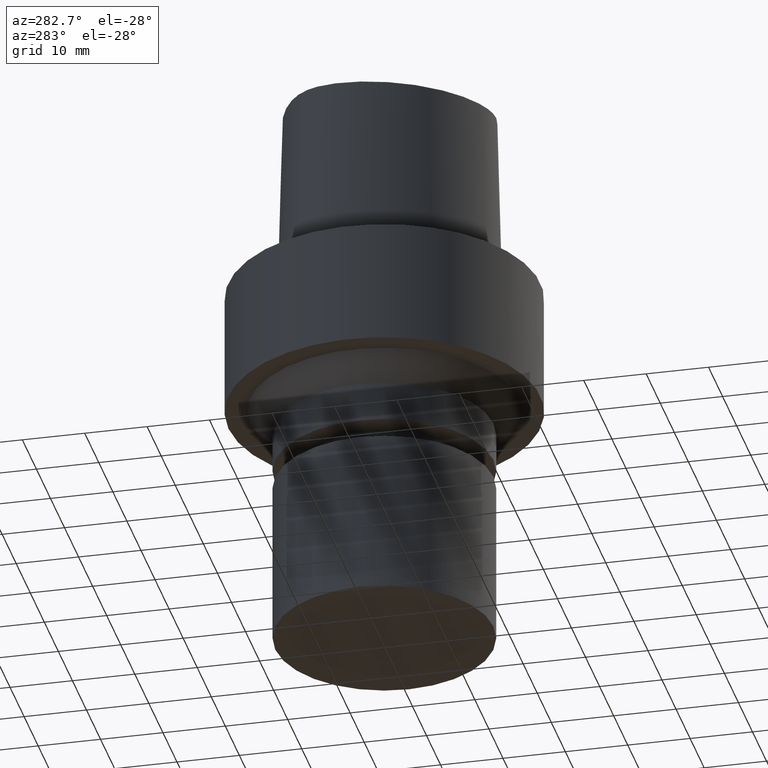
[diagram: clean part render]
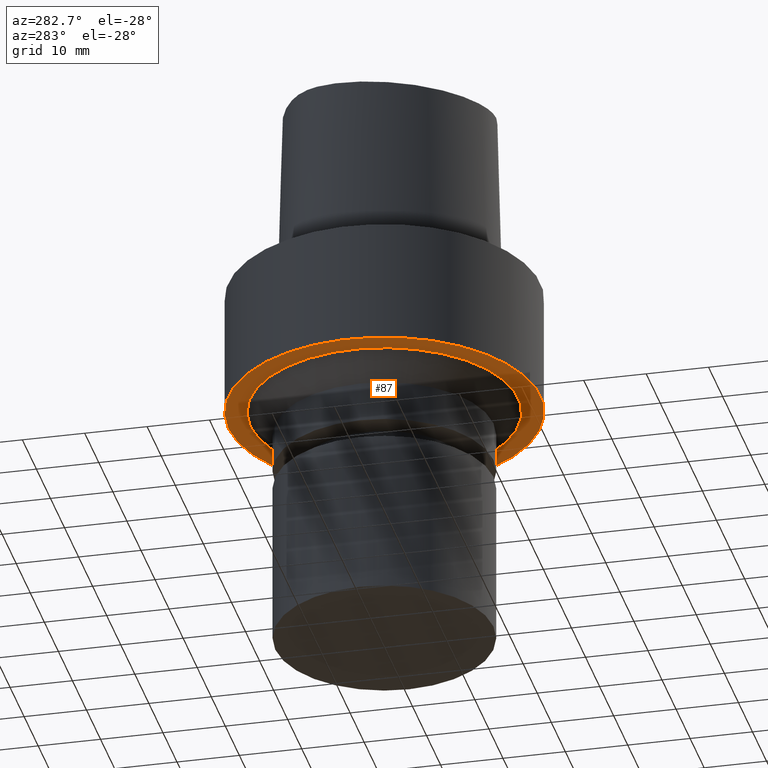
[diagram: same view with one face highlighted and labeled with its STEP entity id]
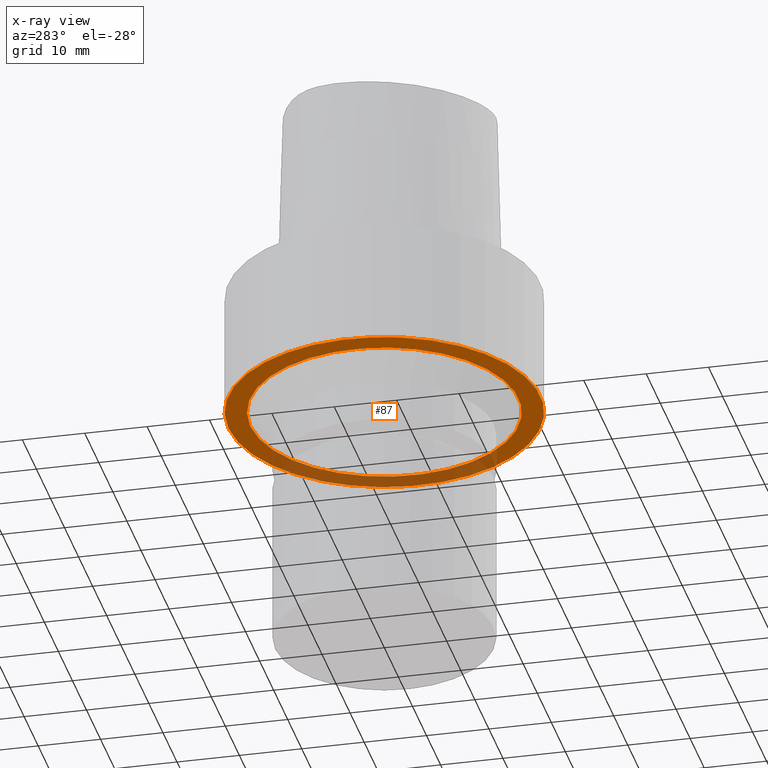
[diagram: x-ray of the same camera — body ghosted, the highlighted face saturated]
A machine part, auxiliary view. The second image highlights one B-rep face of the part: STEP entity #87.
The next image is the same camera in x-ray: the body ghosted, the highlighted face saturated — about 27% of this face is hidden behind the body in this view.
In plain terms, the highlighted planar face has unit normal (0, 0, -1).
Its self-contained STEP definition (entity closure, byte-faithful):
#87=ADVANCED_FACE('Unnamed[1]',(#200,#201),#202,.T.);
#127=EDGE_CURVE('Unnamed[1]',#262,#262,#263,.T.);
#137=EDGE_CURVE('Unnamed[1]',#276,#276,#277,.T.);
#200=FACE_BOUND('',#343,.T.);
#201=FACE_OUTER_BOUND('',#344,.T.);
#202=PLANE('',#345);
#262=VERTEX_POINT('',#947);
#263=CIRCLE('',#948,21.4999999999997);
#276=VERTEX_POINT('',#968);
#277=CIRCLE('',#969,25.0);
#343=EDGE_LOOP('',(#1024));
#344=EDGE_LOOP('',(#1025));
#345=AXIS2_PLACEMENT_3D('',#1026,#1027,#1028);
#947=CARTESIAN_POINT('',(1.22464679914735E-015,21.4999999999997,-20.0));
#948=AXIS2_PLACEMENT_3D('',#1089,#1090,#1091);
#968=CARTESIAN_POINT('',(1.22464679914735E-015,25.0,-20.0));
#969=AXIS2_PLACEMENT_3D('',#1103,#1104,#1105);
#1024=ORIENTED_EDGE('',*,*,#127,.F.);
#1025=ORIENTED_EDGE('',*,*,#137,.T.);
#1026=CARTESIAN_POINT('',(1.22464679914735E-015,23.2499999999999,-20.0));
#1027=DIRECTION('',(6.12323399573677E-017,1.22464679914735E-016,-1.0));
#1028=DIRECTION('',(-1.23259516440783E-032,1.0,1.22464679914735E-016));
#1089=CARTESIAN_POINT('',(1.22464679914735E-015,2.44929359829471E-015,-20.0));
#1090=DIRECTION('',(6.12323399573677E-017,1.22464679914735E-016,-1.0));
#1091=DIRECTION('',(-1.23259516440783E-032,1.0,1.22464679914735E-016));
#1103=CARTESIAN_POINT('',(1.22464679914735E-015,2.44929359829471E-015,-20.0));
#1104=DIRECTION('',(6.12323399573677E-017,1.22464679914735E-016,-1.0));
#1105=DIRECTION('',(-1.23259516440783E-032,1.0,1.22464679914735E-016));